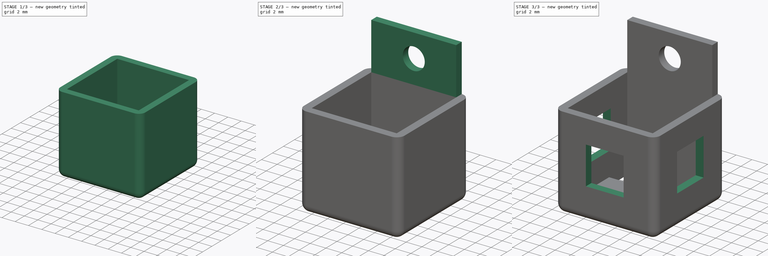
[diagram: build sequence overview — one tinted view per stage of 3, left to right]
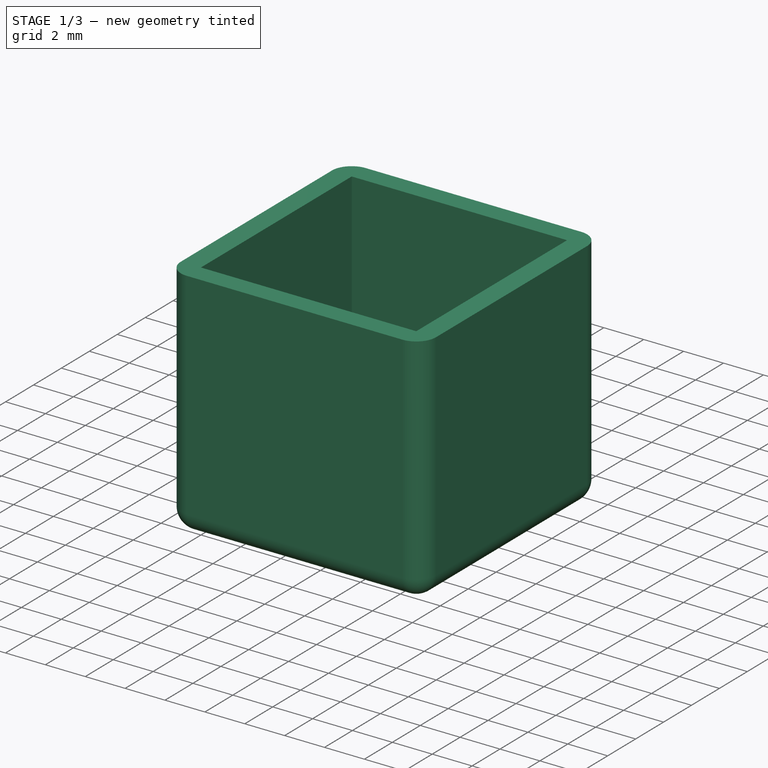
[diagram: stage 1 of 3 — iso view after this stage's code; geometry added in this stage tinted green]
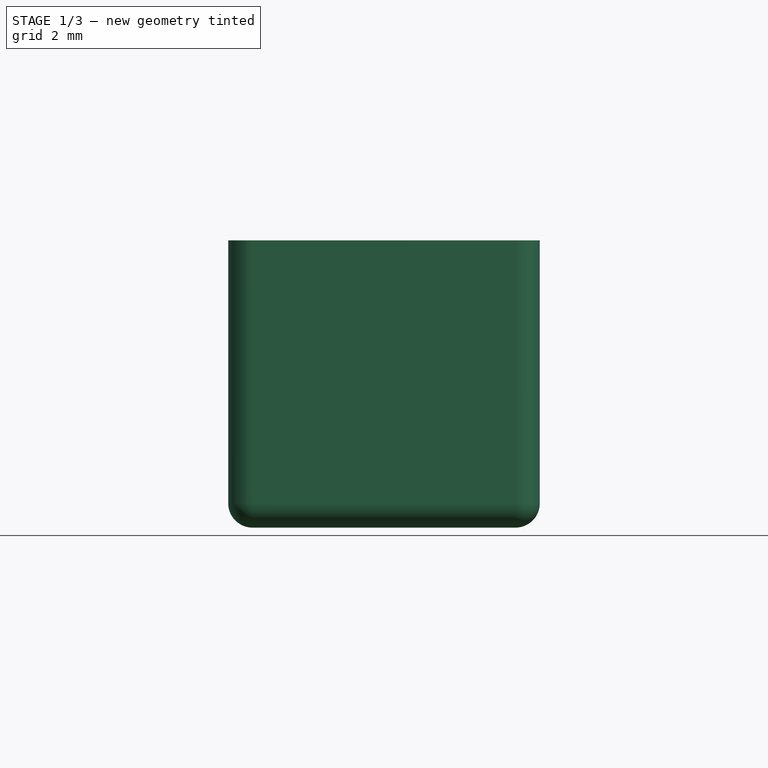
[diagram: stage 1 of 3 — front view after this stage's code; geometry added in this stage tinted green]
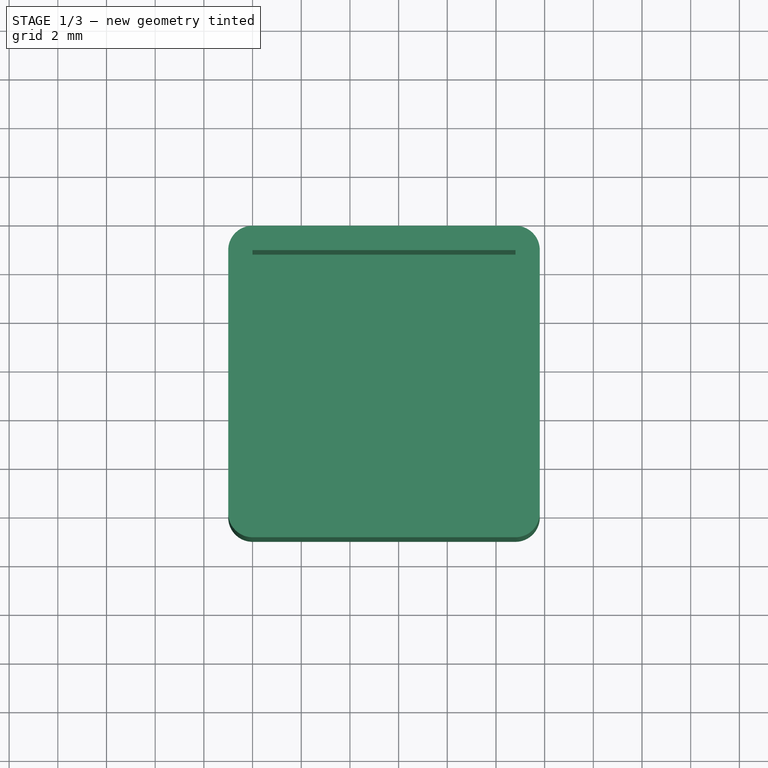
[diagram: stage 1 of 3 — top view after this stage's code; geometry added in this stage tinted green]
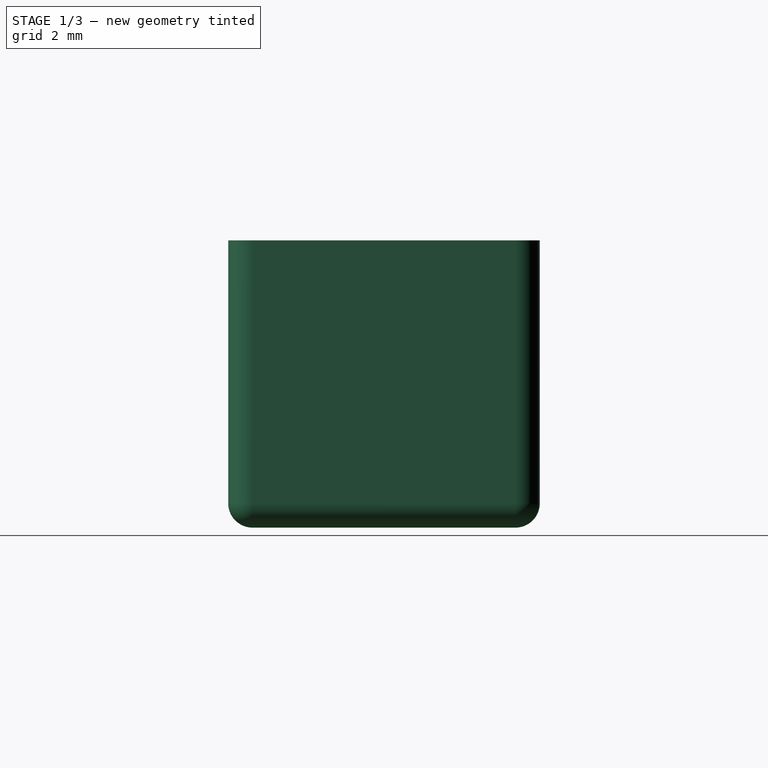
[diagram: stage 1 of 3 — right view after this stage's code; geometry added in this stage tinted green]
FCSTD DOCUMENT  (FreeCAD 0.16R6706 (Git))
Label: thermistor
License: All rights reserved
LicenseURL: http://en.wikipedia.org/wiki/All_rights_reserved
objects: Sketcher::SketchObject×6, PartDesign::Pocket×4, PartDesign::Pad×2, Part::Thickness×1
note: 19 computed .brp shape members not serialized (recipe doc carries the construction recipe); baked Part::Feature solids carry a one-line shape summary decoded from their .brp

FEATURE [Sketcher::SketchObject] Sketch
  sketch-geometry (4):
    g0: LineSegment StartX=0 StartY=10.8 StartZ=0 EndX=10.8 EndY=10.8 EndZ=0
    g1: LineSegment StartX=10.8 StartY=10.8 StartZ=0 EndX=10.8 EndY=0 EndZ=0
    g2: LineSegment StartX=10.8 StartY=0 StartZ=0 EndX=0 EndY=0 EndZ=0
    g3: LineSegment StartX=0 StartY=0 StartZ=0 EndX=0 EndY=10.8 EndZ=0
  constraints (11):
    c: Coincident(g0,g1)
    c: Coincident(g1,g2)
    c: Coincident(g2,g3)
    c: Coincident(g3,g0)
    c: Horizontal(g0)
    c: Horizontal(g2)
    c: Vertical(g1)
    c: Vertical(g3)
    c: Coincident(g2,g-1)
    c: DistanceY(g-1,g0) = 10.8
    c: DistanceX(g0,g0) = 10.8
FEATURE [PartDesign::Pad] Pad
  Length = 10.8
  Length2 = 100
  Sketch = -> Sketch
  Type = 0
FEATURE [Part::Thickness] Thickness
  Faces = -> Pad [Face6]
  Intersection = false
  Join = 0
  Mode = 0
  SelfIntersection = false
  Value = 1
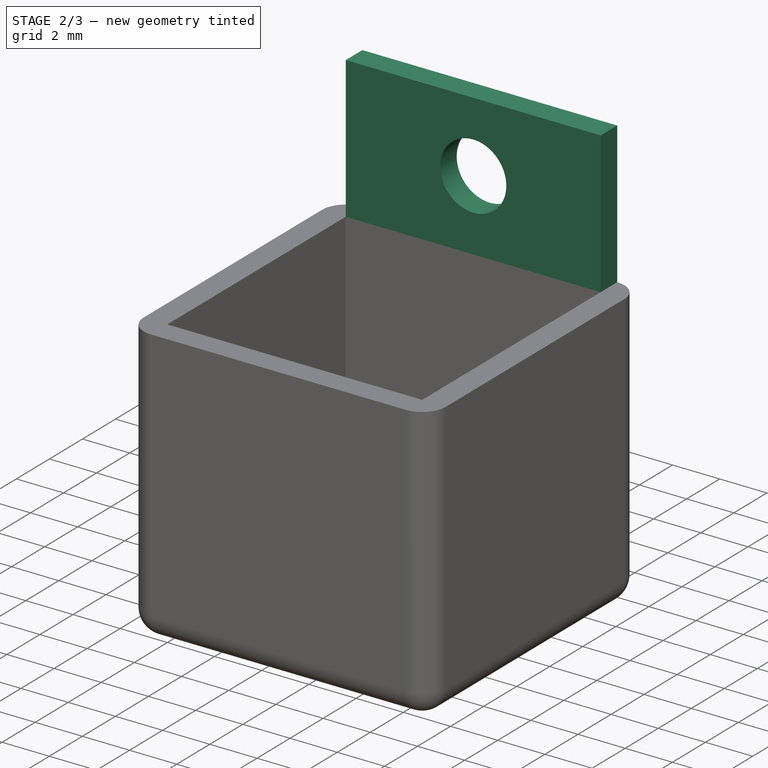
[diagram: stage 2 of 3 — iso view after this stage's code; geometry added in this stage tinted green]
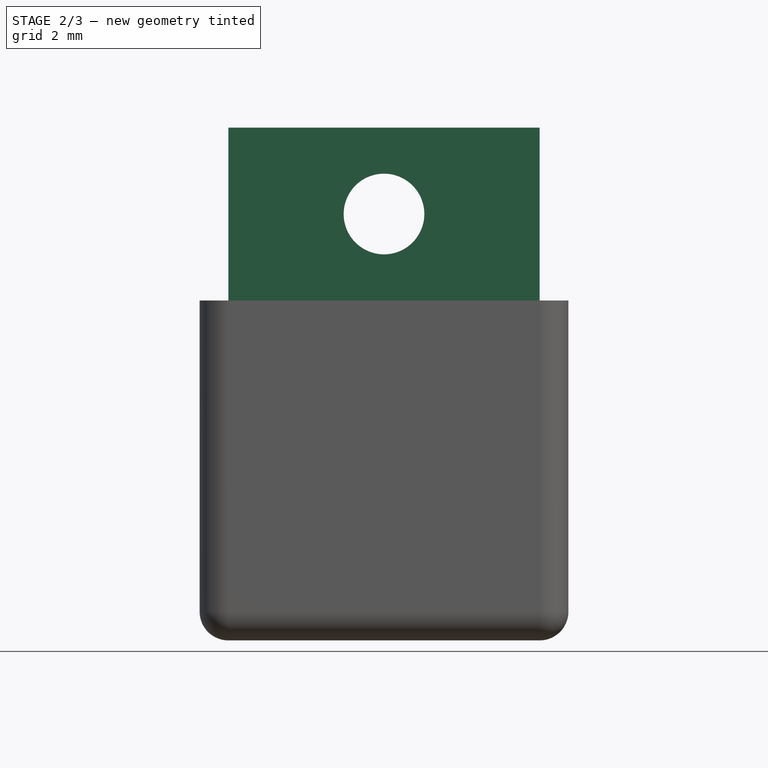
[diagram: stage 2 of 3 — front view after this stage's code; geometry added in this stage tinted green]
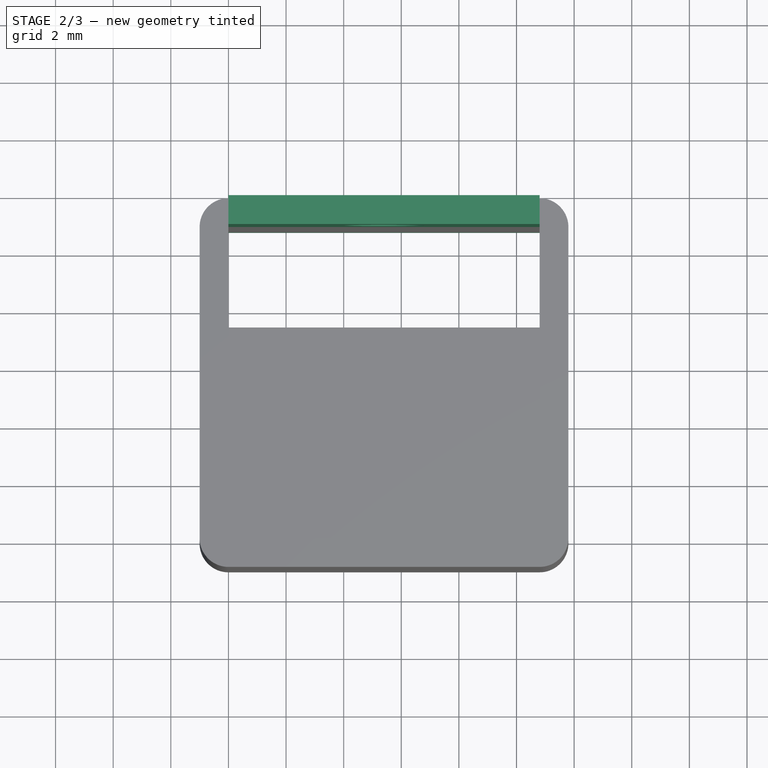
[diagram: stage 2 of 3 — top view after this stage's code; geometry added in this stage tinted green]
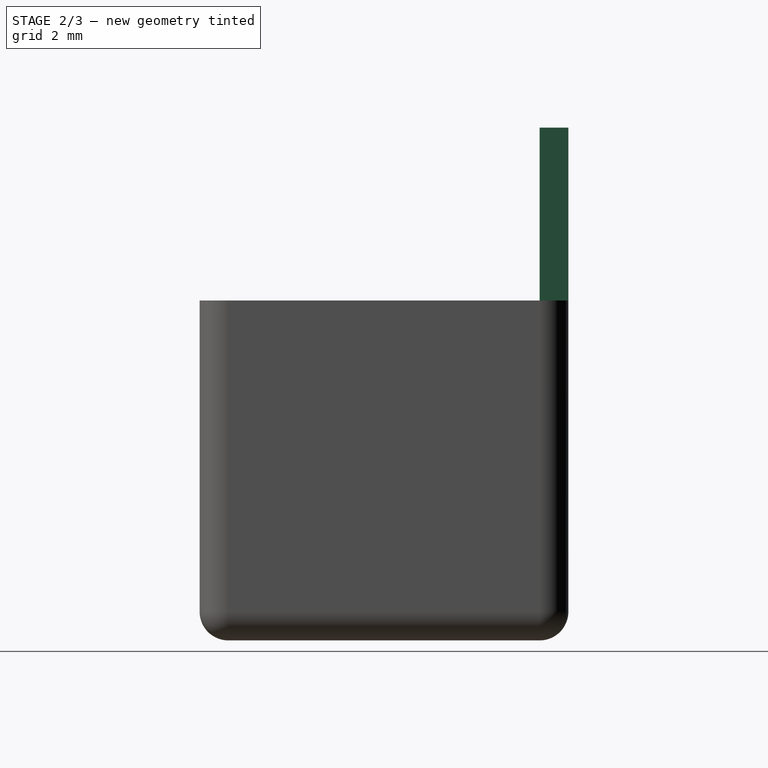
[diagram: stage 2 of 3 — right view after this stage's code; geometry added in this stage tinted green]
FEATURE [Sketcher::SketchObject] Sketch001
  ExternalGeometry = -> [Thickness]
  Placement = pos=(0,0,10.8) rot=(0,0,1;0rad)
  Support = -> Thickness [Face6]
  sketch-geometry (4):
    g0: LineSegment StartX=0 StartY=11.8 StartZ=0 EndX=10.8 EndY=11.8 EndZ=0
    g1: LineSegment StartX=10.8 StartY=11.8 StartZ=0 EndX=10.8 EndY=10.8 EndZ=0
    g2: LineSegment StartX=10.8 StartY=10.8 StartZ=0 EndX=0 EndY=10.8 EndZ=0
    g3: LineSegment StartX=0 StartY=10.8 StartZ=0 EndX=0 EndY=11.8 EndZ=0
  constraints (10):
    c: Coincident(g0,g1)
    c: Coincident(g1,g2)
    c: Coincident(g2,g3)
    c: Coincident(g3,g0)
    c: Horizontal(g0)
    c: Horizontal(g2)
    c: Vertical(g1)
    c: Vertical(g3)
    c: Coincident(g0,g-3)
    c: Coincident(g1,g-4)
FEATURE [PartDesign::Pad] Pad001
  Length = 6
  Length2 = 100
  Sketch = -> Sketch001
  Type = 0
FEATURE [Sketcher::SketchObject] Sketch002
  ExternalGeometry = -> [Pad001]
  Placement = pos=(0,10.8,0) rot=(1,0,0;1.5708rad)
  Support = -> Pad001 [Face6]
  sketch-geometry (1):
    g0: Circle CenterX=5.4 CenterY=13.8 CenterZ=0 NormalX=0 NormalY=0 NormalZ=1 Radius=1.4
  constraints (3):
    c: DistanceX(g-4,g0) = 5.4
    c: DistanceY(g-4,g0) = 3
    c: Radius(g0) = 1.4
FEATURE [PartDesign::Pocket] Pocket
  Length = 5
  Sketch = -> Sketch002
  Type = 1
FEATURE [Sketcher::SketchObject] Sketch003
  ExternalGeometry = -> [Pocket]
  Support = -> Pocket [Face1]
  sketch-geometry (4):
    g0: LineSegment StartX=0 StartY=10.8 StartZ=0 EndX=10.8 EndY=10.8 EndZ=0
    g1: LineSegment StartX=10.8 StartY=10.8 StartZ=0 EndX=10.8 EndY=7.5 EndZ=0
    g2: LineSegment StartX=10.8 StartY=7.5 StartZ=0 EndX=0 EndY=7.5 EndZ=0
    g3: LineSegment StartX=0 StartY=7.5 StartZ=0 EndX=0 EndY=10.8 EndZ=0
  constraints (11):
    c: Coincident(g0,g1)
    c: Coincident(g1,g2)
    c: Coincident(g2,g3)
    c: Coincident(g3,g0)
    c: Horizontal(g0)
    c: Horizontal(g2)
    c: Vertical(g1)
    c: Vertical(g3)
    c: Coincident(g0,g-3)
    c: Coincident(g0,g-3)
    c: DistanceY(g2,g0) = 3.3
FEATURE [PartDesign::Pocket] Pocket001
  Length = 5
  Sketch = -> Sketch003
  Type = 1
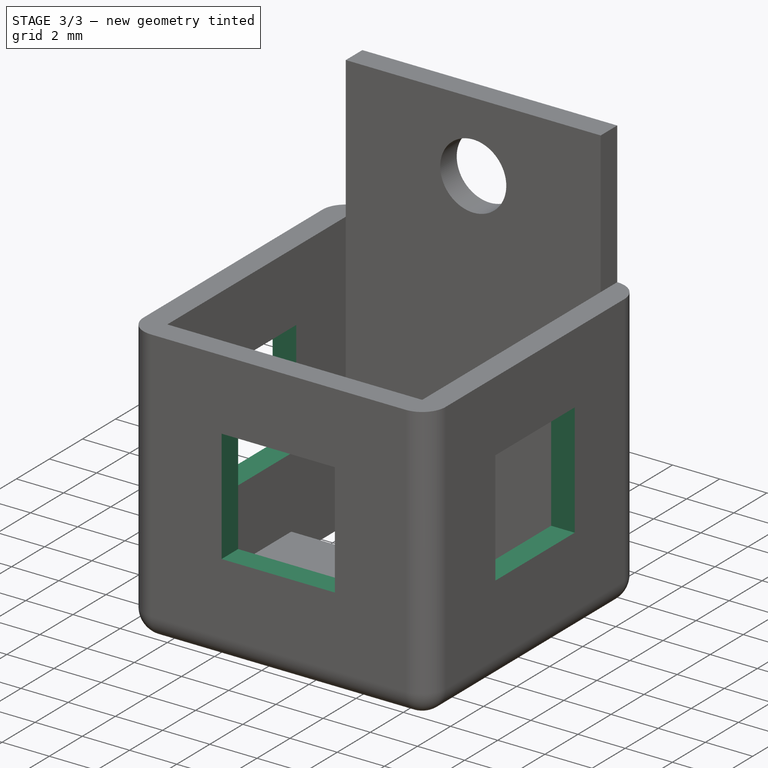
[diagram: stage 3 of 3 — iso view after this stage's code; geometry added in this stage tinted green]
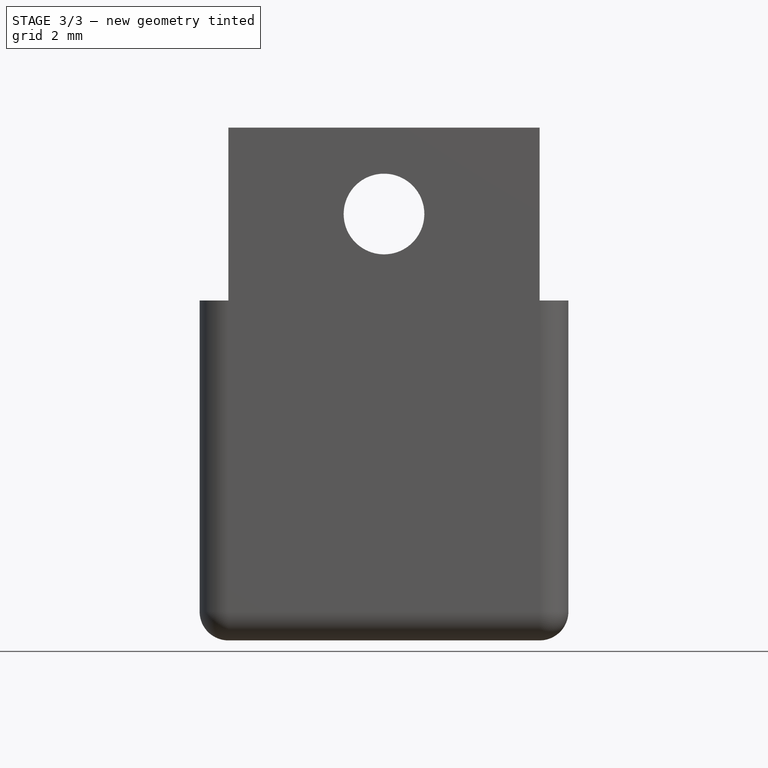
[diagram: stage 3 of 3 — front view after this stage's code; geometry added in this stage tinted green]
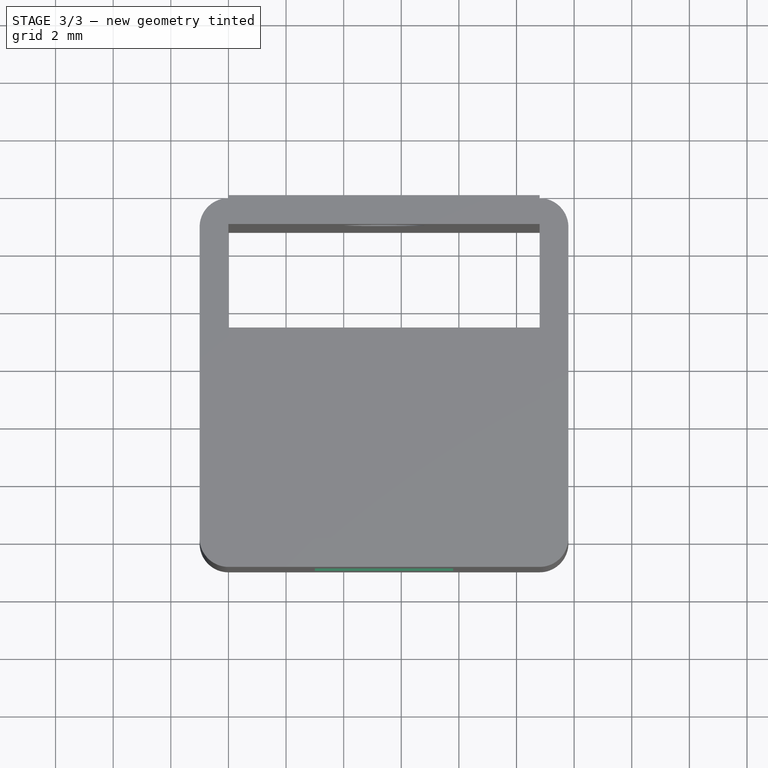
[diagram: stage 3 of 3 — top view after this stage's code; geometry added in this stage tinted green]
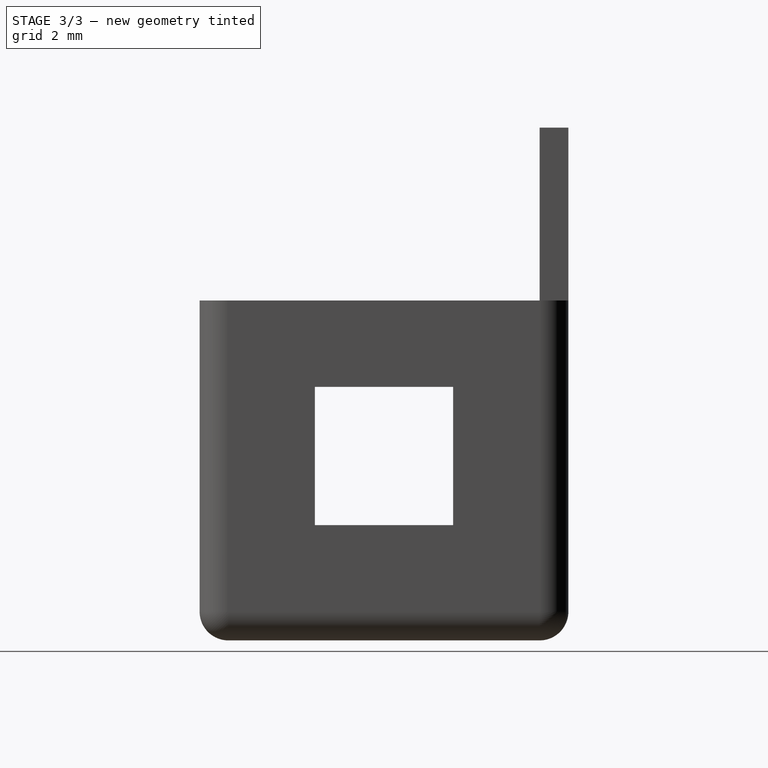
[diagram: stage 3 of 3 — right view after this stage's code; geometry added in this stage tinted green]
FEATURE [Sketcher::SketchObject] Sketch004
  ExternalGeometry = -> [Pocket001]
  Placement = pos=(0,-1,0) rot=(1,0,0;1.5708rad)
  Support = -> Pocket001 [Face20]
  sketch-geometry (4):
    g0: LineSegment StartX=3 StartY=7.8 StartZ=0 EndX=7.8 EndY=7.8 EndZ=0
    g1: LineSegment StartX=7.8 StartY=7.8 StartZ=0 EndX=7.8 EndY=3 EndZ=0
    g2: LineSegment StartX=7.8 StartY=3 StartZ=0 EndX=3 EndY=3 EndZ=0
    g3: LineSegment StartX=3 StartY=3 StartZ=0 EndX=3 EndY=7.8 EndZ=0
  constraints (12):
    c: Coincident(g0,g1)
    c: Coincident(g1,g2)
    c: Coincident(g2,g3)
    c: Coincident(g3,g0)
    c: Horizontal(g0)
    c: Horizontal(g2)
    c: Vertical(g1)
    c: Vertical(g3)
    c: DistanceY(g-1,g2) = 3
    c: DistanceY(g0,g-3) = 3
    c: DistanceX(g-3,g0) = 3
    c: DistanceX(g0,g-4) = 3
FEATURE [PartDesign::Pocket] Pocket002
  Length = 5
  Sketch = -> Sketch004
  Type = 2
FEATURE [Sketcher::SketchObject] Sketch005
  ExternalGeometry = -> [Pocket002]
  Placement = pos=(11.8,0,0) rot=(0.57735,0.57735,0.57735;2.0944rad)
  Support = -> Pocket002 [Face22]
  sketch-geometry (4):
    g0: LineSegment StartX=3 StartY=7.8 StartZ=0 EndX=7.8 EndY=7.8 EndZ=0
    g1: LineSegment StartX=7.8 StartY=7.8 StartZ=0 EndX=7.8 EndY=3 EndZ=0
    g2: LineSegment StartX=7.8 StartY=3 StartZ=0 EndX=3 EndY=3 EndZ=0
    g3: LineSegment StartX=3 StartY=3 StartZ=0 EndX=3 EndY=7.8 EndZ=0
  constraints (12):
    c: Coincident(g0,g1)
    c: Coincident(g1,g2)
    c: Coincident(g2,g3)
    c: Coincident(g3,g0)
    c: Horizontal(g0)
    c: Horizontal(g2)
    c: Vertical(g1)
    c: Vertical(g3)
    c: DistanceY(g0,g-4) = 3
    c: DistanceY(g-1,g2) = 3
    c: DistanceX(g1,g-3) = 3
    c: DistanceX(g-4,g0) = 3
FEATURE [PartDesign::Pocket] Pocket003
  Length = 5
  Sketch = -> Sketch005
  Type = 1
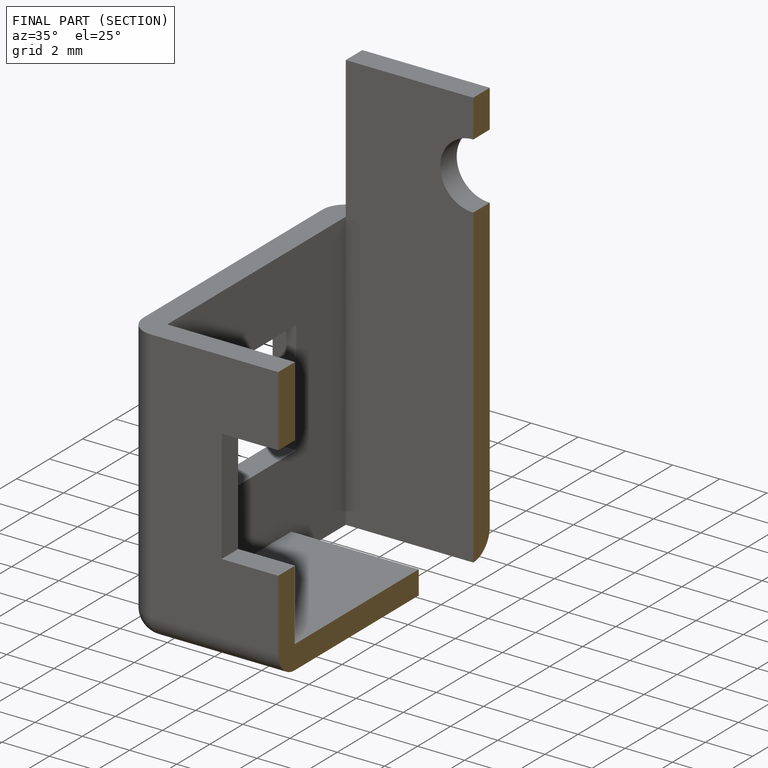
[diagram: finished part — half-section view (interior)]
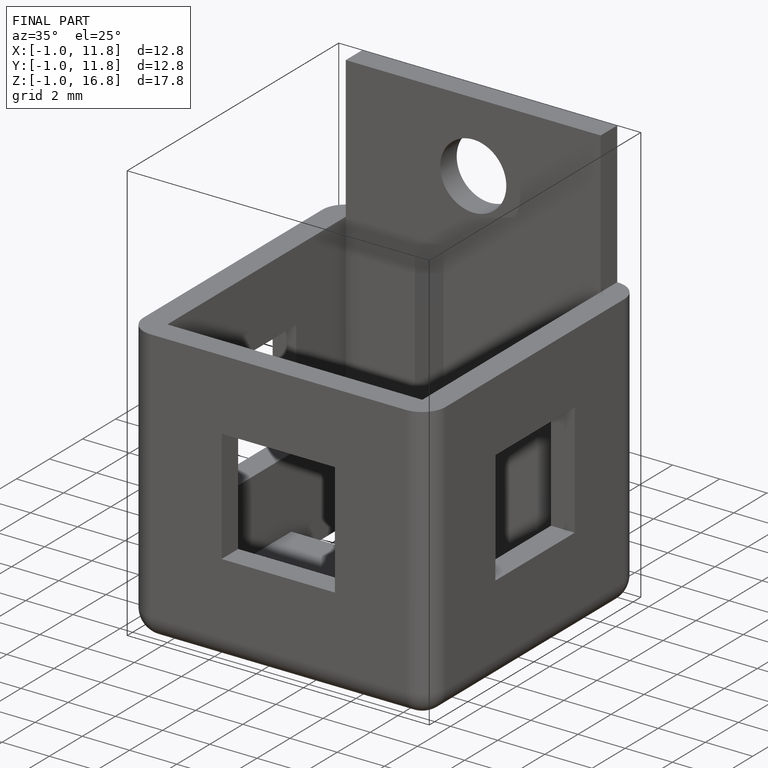
[diagram: finished part — iso view with bounding-box wireframe]
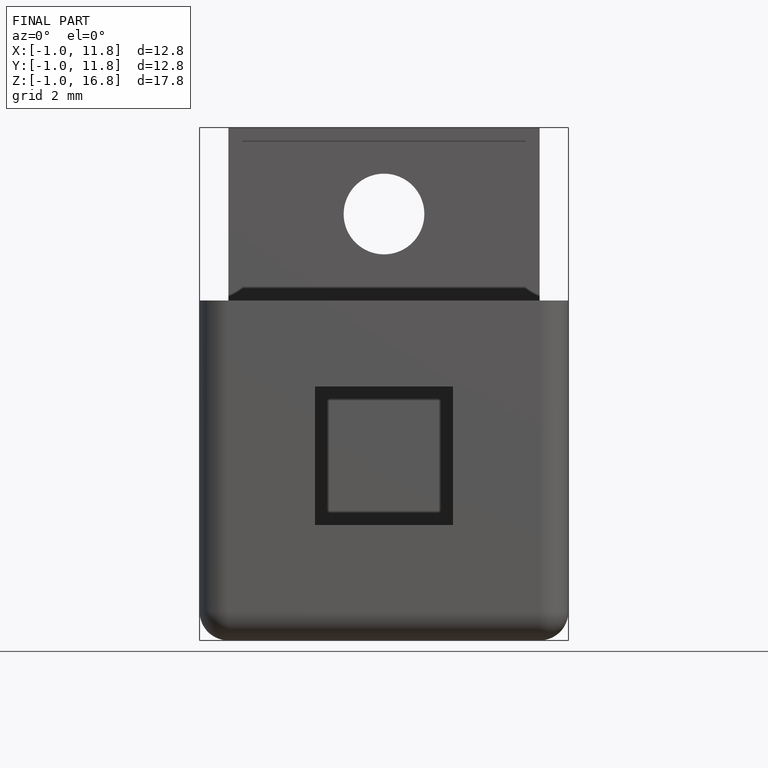
[diagram: finished part — front view with bounding-box wireframe]
